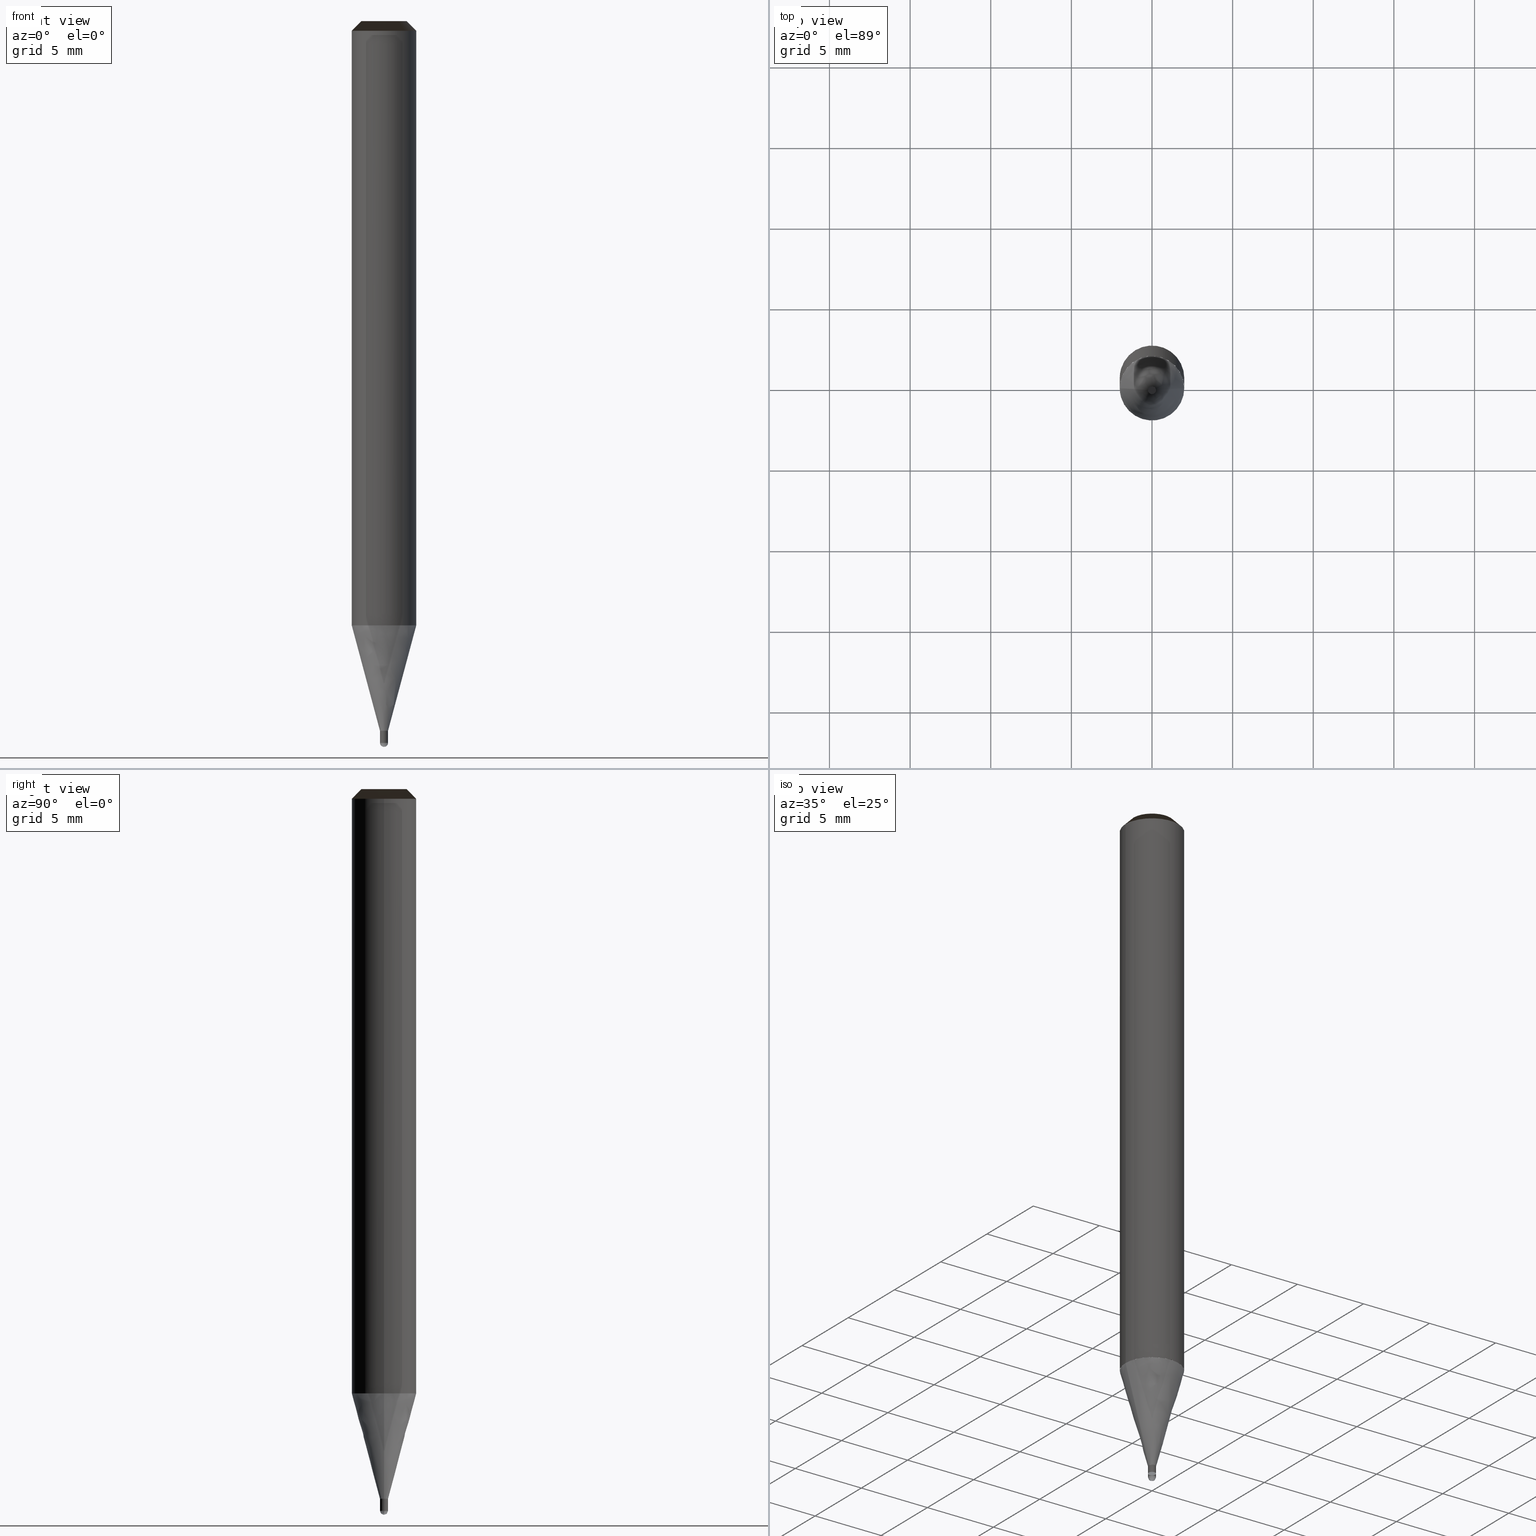
[diagram: canonical four-view strip — front | top / right | iso, engineering-drawing reading convention]
A machine part, canonical four-view strip (front | top / right | iso — engineering-drawing reading convention). The complete STEP part file that produces these views, byte-faithful:
ISO-10303-21;
HEADER;
/* Generated by ISBE GmbH (www.isbe.de) */
/* OPTION: using custom schema-name function */

FILE_DESCRIPTION(
/* description */ (''),
/* implementation_level */ '2;1');

FILE_NAME(
/*name*/ 'SHBN-2005-010-S04-STH',
/*time_stamp*/'2023-6-20T7:41:44',
/*author*/ ('ISBE GmbH'),
/*organization*/ ('ISBE GmbH'),
/*preprocessor_version*/ 'STEP IO v1.0',
/*originating_system*/ '',
/*authorisation*/ '');

FILE_SCHEMA (('AUTOMOTIVE_DESIGN'));
ENDSEC;

DATA;
#10=SHAPE_DEFINITION_REPRESENTATION(#11,#57);
#11=PRODUCT_DEFINITION_SHAPE('Document','',#13);
#12=PRODUCT_DEFINITION_CONTEXT('3D Mechanical Parts',#17,'design');
#13=PRODUCT_DEFINITION('A','First version',#14,#12);
#14=PRODUCT_DEFINITION_FORMATION_WITH_SPECIFIED_SOURCE('A','First version',#19,.MADE.);
#15=PRODUCT_RELATED_PRODUCT_CATEGORY('tool','tool',(#19));
#16=APPLICATION_PROTOCOL_DEFINITION('Draft International Standard', 'automotive_design',1999,#17);
#17=APPLICATION_CONTEXT('data for automotive mechanical design processes');
#18=PRODUCT_CONTEXT('3D Mechanical Parts',#17,'mechanical');
#19=PRODUCT('Document','Document','ISBE converted to STEP',(#18));
#20=(
LENGTH_UNIT()
NAMED_UNIT(*)
SI_UNIT(.MILLI.,.METRE.)
);
#21=(
NAMED_UNIT(*)
PLANE_ANGLE_UNIT()
SI_UNIT($,.RADIAN.)
);
#22=DIMENSIONAL_EXPONENTS(0.,0.,0.,0.,0.,0.,0.);
#23=PLANE_ANGLE_MEASURE_WITH_UNIT(PLANE_ANGLE_MEASURE(0.01745329252),#21);
#24=(
CONVERSION_BASED_UNIT('DEGREES',#23)
NAMED_UNIT(#22)
PLANE_ANGLE_UNIT()
);
#25=(
NAMED_UNIT(*)
SI_UNIT($,.STERADIAN.)
SOLID_ANGLE_UNIT()
);
#26=UNCERTAINTY_MEASURE_WITH_UNIT(LENGTH_MEASURE(0.001),#20, 'DISTANCE_ACCURACY_VALUE', 'Maximum model space distance between geometric entities at asserted connectivities');
#27=(
GEOMETRIC_REPRESENTATION_CONTEXT(3)
GLOBAL_UNCERTAINTY_ASSIGNED_CONTEXT((#26))
GLOBAL_UNIT_ASSIGNED_CONTEXT((#25,#24,#20))
REPRESENTATION_CONTEXT('ID1','3D')
);
#28=CARTESIAN_POINT('',(0.0,0.0,0.0));
#29=DIRECTION('',(1.0,0.0,0.0));
#30=DIRECTION('',(0.0,0.0,1.0));
#31=AXIS2_PLACEMENT_3D('',#28,#30,#29);
#32=CARTESIAN_POINT('',(0.0,0.0,0.0));
#33=DIRECTION('',(1.0,0.0,0.0));
#34=DIRECTION('',(0.0,0.0,1.0));
#35=AXIS2_PLACEMENT_3D('',#32,#34,#33);
#36=CARTESIAN_POINT('',(0.0,0.0,0.0));
#37=DIRECTION('',(1.0,0.0,0.0));
#38=DIRECTION('',(0.0,0.0,1.0));
#39=AXIS2_PLACEMENT_3D('',#36,#38,#37);
#40=CARTESIAN_POINT('',(0.0,0.0,0.0));
#41=DIRECTION('',(0.0,0.0,1.0));
#42=DIRECTION('',(1.0,0.0,0.0));
#43=AXIS2_PLACEMENT_3D('MCS',#40,#42,#41);
#44=CARTESIAN_POINT('',(0.0,0.0,37.47));
#45=DIRECTION('',(0.0,0.0,1.0));
#46=DIRECTION('',(1.0,0.0,0.0));
#47=AXIS2_PLACEMENT_3D('PCS',#44,#46,#45);
#48=CARTESIAN_POINT('',(0.0,0.0,-7.53));
#49=DIRECTION('',(0.0,0.0,1.0));
#50=DIRECTION('',(1.0,0.0,0.0));
#51=AXIS2_PLACEMENT_3D('CIP',#48,#50,#49);
#52=CARTESIAN_POINT('',(0.0,-0.25,-7.53));
#53=DIRECTION('',(0.0,0.0,1.0));
#54=DIRECTION('',(1.0,0.0,0.0));
#55=AXIS2_PLACEMENT_3D('CRP',#52,#54,#53);
#57=SHAPE_REPRESENTATION('Document',(#31,#35,#39,#43,#47,#51,#55),#27);
#58=DIRECTION('',(1.0,0.0,0.0));
#59=DIRECTION('',(0.0,0.0,1.0));
#60=CARTESIAN_POINT('',(-0.002499872672,-0.00002523136,-7.529959925233));
#61=CARTESIAN_POINT('',(-0.002421480193,-0.007638253087,-7.52987155405));
#62=CARTESIAN_POINT('',(-0.002322864485,-0.015848229195,-7.529486348188));
#63=CARTESIAN_POINT('',(-0.002197355265,-0.023904978014,-7.528844778237));
#64=CARTESIAN_POINT('',(-0.002029954615,-0.031904777296,-7.527947503456));
#65=CARTESIAN_POINT('',(-0.001806730511,-0.039859047038,-7.526795445854));
#66=CARTESIAN_POINT('',(-0.001514175515,-0.047765663457,-7.525389789248));
#67=CARTESIAN_POINT('',(-0.00113918243,-0.055618568315,-7.523731978045));
#68=CARTESIAN_POINT('',(-0.000669091871,-0.063410116009,-7.52182371576));
#69=CARTESIAN_POINT('',(-0.000091754697,-0.071131837479,-7.519666963259));
#70=CARTESIAN_POINT('',(0.000604402074,-0.078774735891,-7.517263936753));
#71=CARTESIAN_POINT('',(0.00143030911,-0.08632941571,-7.514617105512));
#72=CARTESIAN_POINT('',(0.002396189665,-0.093786145483,-7.511729189337));
#73=CARTESIAN_POINT('',(0.003511496199,-0.101134892959,-7.508603155754));
#74=CARTESIAN_POINT('',(0.004784849201,-0.108365349213,-7.505242216976));
#75=CARTESIAN_POINT('',(0.006223978645,-0.115466949648,-7.501649826593));
#76=CARTESIAN_POINT('',(0.007835668468,-0.122428895854,-7.497829676031));
#77=CARTESIAN_POINT('',(0.009625704481,-0.129240180452,-7.493785690751));
#78=CARTESIAN_POINT('',(0.011598826128,-0.135889616086,-7.489522026223));
#79=CARTESIAN_POINT('',(0.013758682494,-0.142365869173,-7.485043063649));
#80=CARTESIAN_POINT('',(0.016107792999,-0.148657498709,-7.480353405467));
#81=CARTESIAN_POINT('',(0.018647513194,-0.154753000183,-7.475457870617));
#82=CARTESIAN_POINT('',(0.021378006066,-0.160640854507,-7.470361489592));
#83=CARTESIAN_POINT('',(0.024298219265,-0.166309581747,-7.465069499269));
#84=CARTESIAN_POINT('',(0.027405868636,-0.171747799302,-7.459587337524));
#85=CARTESIAN_POINT('',(0.030697428404,-0.176944284136,-7.453920637651));
#86=CARTESIAN_POINT('',(0.034168128355,-0.181888038541,-7.448075222565));
#87=CARTESIAN_POINT('',(0.037811958278,-0.186568358869,-7.442057098827));
#88=CARTESIAN_POINT('',(0.041621679924,-0.190974906588,-7.435872450465));
#89=CARTESIAN_POINT('',(0.045588846652,-0.19509778098,-7.429527632623));
#90=CARTESIAN_POINT('',(0.049703830893,-0.19892759272,-7.423029165031));
#91=CARTESIAN_POINT('',(0.053955859477,-0.20245553759,-7.416383725303));
#92=CARTESIAN_POINT('',(0.058333056825,-0.205673469488,-7.409598142078));
#93=CARTESIAN_POINT('',(0.0628224959,-0.208573971935,-7.402679388001));
#94=CARTESIAN_POINT('',(0.067410256746,-0.211150427218,-7.39563457256));
#95=CARTESIAN_POINT('',(0.072081492384,-0.213397082369,-7.388470934779));
#96=CARTESIAN_POINT('',(0.076820501709,-0.215309111135,-7.381195835781));
#97=CARTESIAN_POINT('',(0.081610808987,-0.216882671155,-7.37381675122));
#98=CARTESIAN_POINT('',(0.086435249463,-0.218114955584,-7.366341263605));
#99=CARTESIAN_POINT('',(0.091276060506,-0.219004238456,-7.358777054506));
#100=CARTESIAN_POINT('',(0.096114977647,-0.219549913117,-7.351131896658));
#101=CARTESIAN_POINT('',(0.100933334818,-0.21975252314,-7.343413645977));
#102=CARTESIAN_POINT('',(0.105712168015,-0.219613785213,-7.335630233489));
#103=CARTESIAN_POINT('',(0.110432321577,-0.219136603556,-7.327789657175));
#104=CARTESIAN_POINT('',(0.115074556223,-0.218325075528,-7.319899973758));
#105=CARTESIAN_POINT('',(0.119619657961,-0.217184488165,-7.311969290421));
#106=CARTESIAN_POINT('',(0.124048546952,-0.215721305519,-7.304005756477));
#107=CARTESIAN_POINT('',(0.128342385434,-0.213943146731,-7.296017554995));
#108=CARTESIAN_POINT('',(0.132482683758,-0.2118587549,-7.288012894393));
#109=CARTESIAN_POINT('',(0.136451403668,-0.209477956924,-7.28));
#110=CARTESIAN_POINT('',(0.165163164321,-0.187672931323,-7.2175));
#111=CARTESIAN_POINT('',(0.190439995354,-0.161964836213,-7.155));
#112=CARTESIAN_POINT('',(0.211756209723,-0.132888327719,-7.0925));
#113=CARTESIAN_POINT('',(0.228668490079,-0.101048115496,-7.03));
#114=CARTESIAN_POINT('',(0.002499872672,0.00002523136,-7.529959925233));
#115=CARTESIAN_POINT('',(0.002421480193,0.007638253087,-7.52987155405));
#116=CARTESIAN_POINT('',(0.002322864485,0.015848229195,-7.529486348188));
#117=CARTESIAN_POINT('',(0.002197355265,0.023904978014,-7.528844778237));
#118=CARTESIAN_POINT('',(0.002029954615,0.031904777296,-7.527947503456));
#119=CARTESIAN_POINT('',(0.001806730511,0.039859047038,-7.526795445854));
#120=CARTESIAN_POINT('',(0.001514175515,0.047765663457,-7.525389789248));
#121=CARTESIAN_POINT('',(0.00113918243,0.055618568315,-7.523731978045));
#122=CARTESIAN_POINT('',(0.000669091871,0.063410116009,-7.52182371576));
#123=CARTESIAN_POINT('',(0.000091754697,0.071131837479,-7.519666963259));
#124=CARTESIAN_POINT('',(-0.000604402074,0.078774735891,-7.517263936753));
#125=CARTESIAN_POINT('',(-0.00143030911,0.08632941571,-7.514617105512));
#126=CARTESIAN_POINT('',(-0.002396189665,0.093786145483,-7.511729189337));
#127=CARTESIAN_POINT('',(-0.003511496199,0.101134892959,-7.508603155754));
#128=CARTESIAN_POINT('',(-0.004784849201,0.108365349213,-7.505242216976));
#129=CARTESIAN_POINT('',(-0.006223978645,0.115466949648,-7.501649826593));
#130=CARTESIAN_POINT('',(-0.007835668468,0.122428895854,-7.497829676031));
#131=CARTESIAN_POINT('',(-0.009625704481,0.129240180452,-7.493785690751));
#132=CARTESIAN_POINT('',(-0.011598826128,0.135889616086,-7.489522026223));
#133=CARTESIAN_POINT('',(-0.013758682494,0.142365869173,-7.485043063649));
#134=CARTESIAN_POINT('',(-0.016107792999,0.148657498709,-7.480353405467));
#135=CARTESIAN_POINT('',(-0.018647513194,0.154753000183,-7.475457870617));
#136=CARTESIAN_POINT('',(-0.021378006066,0.160640854507,-7.470361489592));
#137=CARTESIAN_POINT('',(-0.024298219265,0.166309581747,-7.465069499269));
#138=CARTESIAN_POINT('',(-0.027405868636,0.171747799302,-7.459587337524));
#139=CARTESIAN_POINT('',(-0.030697428404,0.176944284136,-7.453920637651));
#140=CARTESIAN_POINT('',(-0.034168128355,0.181888038541,-7.448075222565));
#141=CARTESIAN_POINT('',(-0.037811958278,0.186568358869,-7.442057098827));
#142=CARTESIAN_POINT('',(-0.041621679924,0.190974906588,-7.435872450465));
#143=CARTESIAN_POINT('',(-0.045588846652,0.19509778098,-7.429527632623));
#144=CARTESIAN_POINT('',(-0.049703830893,0.19892759272,-7.423029165031));
#145=CARTESIAN_POINT('',(-0.053955859477,0.20245553759,-7.416383725303));
#146=CARTESIAN_POINT('',(-0.058333056825,0.205673469488,-7.409598142078));
#147=CARTESIAN_POINT('',(-0.0628224959,0.208573971935,-7.402679388001));
#148=CARTESIAN_POINT('',(-0.067410256746,0.211150427218,-7.39563457256));
#149=CARTESIAN_POINT('',(-0.072081492384,0.213397082369,-7.388470934779));
#150=CARTESIAN_POINT('',(-0.076820501709,0.215309111135,-7.381195835781));
#151=CARTESIAN_POINT('',(-0.081610808987,0.216882671155,-7.37381675122));
#152=CARTESIAN_POINT('',(-0.086435249463,0.218114955584,-7.366341263605));
#153=CARTESIAN_POINT('',(-0.091276060506,0.219004238456,-7.358777054506));
#154=CARTESIAN_POINT('',(-0.096114977647,0.219549913117,-7.351131896658));
#155=CARTESIAN_POINT('',(-0.100933334818,0.21975252314,-7.343413645977));
#156=CARTESIAN_POINT('',(-0.105712168015,0.219613785213,-7.335630233489));
#157=CARTESIAN_POINT('',(-0.110432321577,0.219136603556,-7.327789657175));
#158=CARTESIAN_POINT('',(-0.115074556223,0.218325075528,-7.319899973758));
#159=CARTESIAN_POINT('',(-0.119619657961,0.217184488165,-7.311969290421));
#160=CARTESIAN_POINT('',(-0.124048546952,0.215721305519,-7.304005756477));
#161=CARTESIAN_POINT('',(-0.128342385434,0.213943146731,-7.296017554995));
#162=CARTESIAN_POINT('',(-0.132482683758,0.2118587549,-7.288012894393));
#163=CARTESIAN_POINT('',(-0.136451403668,0.209477956924,-7.28));
#164=CARTESIAN_POINT('',(-0.165163164321,0.187672931323,-7.2175));
#165=CARTESIAN_POINT('',(-0.190439995354,0.161964836213,-7.155));
#166=CARTESIAN_POINT('',(-0.211756209723,0.132888327719,-7.0925));
#167=CARTESIAN_POINT('',(-0.228668490079,0.101048115496,-7.03));
#168=CARTESIAN_POINT('',(0.0,0.0,-7.53));
#169=CARTESIAN_POINT('',(0.25,0.0,-7.53));
#170=CARTESIAN_POINT('',(0.25,0.25,-7.53));
#171=CARTESIAN_POINT('',(0.0,0.25,-7.53));
#172=CARTESIAN_POINT('',(-0.25,0.25,-7.53));
#173=CARTESIAN_POINT('',(-0.25,0.0,-7.53));
#174=CARTESIAN_POINT('',(0.25,0.0,-7.28));
#175=CARTESIAN_POINT('',(0.25,0.25,-7.28));
#176=CARTESIAN_POINT('',(0.0,0.25,-7.28));
#177=CARTESIAN_POINT('',(-0.25,0.25,-7.28));
#178=CARTESIAN_POINT('',(-0.25,0.0,-7.28));
#179=CARTESIAN_POINT('',(0.25,0.0,-7.03));
#180=CARTESIAN_POINT('',(0.25,0.25,-7.03));
#181=CARTESIAN_POINT('',(0.0,0.25,-7.03));
#182=CARTESIAN_POINT('',(-0.25,0.25,-7.03));
#183=CARTESIAN_POINT('',(-0.25,0.0,-7.03));
#184=CARTESIAN_POINT('',(0.0,0.0,-7.03));
#185=CARTESIAN_POINT('',(-0.25,-0.25,-7.53));
#186=CARTESIAN_POINT('',(0.0,-0.25,-7.53));
#187=CARTESIAN_POINT('',(0.25,-0.25,-7.53));
#188=CARTESIAN_POINT('',(-0.25,-0.25,-7.28));
#189=CARTESIAN_POINT('',(0.0,-0.25,-7.28));
#190=CARTESIAN_POINT('',(0.25,-0.25,-7.28));
#191=CARTESIAN_POINT('',(-0.25,-0.25,-7.03));
#192=CARTESIAN_POINT('',(0.0,-0.25,-7.03));
#193=CARTESIAN_POINT('',(0.25,-0.25,-7.03));
#194=CARTESIAN_POINT('',(0.25,0.0,-6.531088913246));
#195=CARTESIAN_POINT('',(0.25,0.25,-6.531088913246));
#196=CARTESIAN_POINT('',(0.0,0.25,-6.531088913246));
#197=CARTESIAN_POINT('',(-0.25,0.25,-6.531088913246));
#198=CARTESIAN_POINT('',(-0.25,0.0,-6.531088913246));
#199=CARTESIAN_POINT('',(2.0,0.0,-0.0));
#200=CARTESIAN_POINT('',(2.0,2.0,-0.0));
#201=CARTESIAN_POINT('',(0.0,2.0,-0.0));
#202=CARTESIAN_POINT('',(-2.0,2.0,-0.0));
#203=CARTESIAN_POINT('',(-2.0,0.0,-0.0));
#204=CARTESIAN_POINT('',(2.0,0.0,36.87));
#205=CARTESIAN_POINT('',(2.0,2.0,36.87));
#206=CARTESIAN_POINT('',(0.0,2.0,36.87));
#207=CARTESIAN_POINT('',(-2.0,2.0,36.87));
#208=CARTESIAN_POINT('',(-2.0,0.0,36.87));
#209=CARTESIAN_POINT('',(1.4,0.0,37.47));
#210=CARTESIAN_POINT('',(1.4,1.4,37.47));
#211=CARTESIAN_POINT('',(0.0,1.4,37.47));
#212=CARTESIAN_POINT('',(-1.4,1.4,37.47));
#213=CARTESIAN_POINT('',(-1.4,0.0,37.47));
#214=CARTESIAN_POINT('',(0.0,0.0,37.47));
#215=CARTESIAN_POINT('',(-0.25,-0.25,-6.531088913246));
#216=CARTESIAN_POINT('',(0.0,-0.25,-6.531088913246));
#217=CARTESIAN_POINT('',(0.25,-0.25,-6.531088913246));
#218=CARTESIAN_POINT('',(-2.0,-2.0,-0.0));
#219=CARTESIAN_POINT('',(0.0,-2.0,-0.0));
#220=CARTESIAN_POINT('',(2.0,-2.0,-0.0));
#221=CARTESIAN_POINT('',(-2.0,-2.0,36.87));
#222=CARTESIAN_POINT('',(0.0,-2.0,36.87));
#223=CARTESIAN_POINT('',(2.0,-2.0,36.87));
#224=CARTESIAN_POINT('',(-1.4,-1.4,37.47));
#225=CARTESIAN_POINT('',(0.0,-1.4,37.47));
#226=CARTESIAN_POINT('',(1.4,-1.4,37.47));
#227=(
BOUNDED_CURVE()
B_SPLINE_CURVE(1,(#60,#61,#62,#63,#64,#65,#66,#67,#68,#69,#70,#71,#72,#73,#74,#75,#76,#77,#78,#79,#80,#81,#82,#83,#84,#85,#86,#87,#88,#89,#90,#91,#92,#93,#94,#95,#96,#97,#98,#99,#100,#101,#102,#103,#104,#105,#106,#107,#108,#109,#110,#111,#112,#113),.UNSPECIFIED.,.F.,.F.)
B_SPLINE_CURVE_WITH_KNOTS((2,1,1,1,1,1,1,1,1,1,1,1,1,1,1,1,1,1,1,1,1,1,1,1,1,1,1,1,1,1,1,1,1,1,1,1,1,1,1,1,1,1,1,1,1,1,1,1,1,1,1,1,1,2),
(0.0,0.010797192835,0.022453263441,0.033915947201,0.045333926007,0.056735827576,0.06813142827,0.079525355078,0.090920481366,0.1023190675,0.113723225852,0.125135136666,0.136557155917,0.147991869074,0.159442113771,0.170910982133,0.182401808279,0.193918144173,0.205463725891,0.217042431899,0.228658234729,0.240315147402,0.252017165885,0.26376820897,0.27557205687,0.287432289892,0.299352228446,0.311334875598,0.323382863269,0.335498403056,0.347683242503,0.359938627502,0.372265271341,0.384663330756,0.397132389214,0.409671447473,0.422278921388,0.434952646792,0.447689891198,0.460487371987,0.473341280697,0.48624731298,0.499200703737,0.512196266955,0.525228439729,0.538291329947,0.55137876712,0.564484355831,0.577601531285,0.590723616436,0.693042712327,0.795361808218,0.897680904109,1.0),.UNSPECIFIED.)
CURVE()
GEOMETRIC_REPRESENTATION_ITEM()
RATIONAL_B_SPLINE_CURVE((1.0,1.0,1.0,1.0,1.0,1.0,1.0,1.0,1.0,1.0,1.0,1.0,1.0,1.0,1.0,1.0,1.0,1.0,1.0,1.0,1.0,1.0,1.0,1.0,1.0,1.0,1.0,1.0,1.0,1.0,1.0,1.0,1.0,1.0,1.0,1.0,1.0,1.0,1.0,1.0,1.0,1.0,1.0,1.0,1.0,1.0,1.0,1.0,1.0,1.0,1.0,1.0,1.0,1.0))
REPRESENTATION_ITEM('')
);
#228=(
BOUNDED_CURVE()
B_SPLINE_CURVE(1,(#114,#115,#116,#117,#118,#119,#120,#121,#122,#123,#124,#125,#126,#127,#128,#129,#130,#131,#132,#133,#134,#135,#136,#137,#138,#139,#140,#141,#142,#143,#144,#145,#146,#147,#148,#149,#150,#151,#152,#153,#154,#155,#156,#157,#158,#159,#160,#161,#162,#163,#164,#165,#166,#167),.UNSPECIFIED.,.F.,.F.)
B_SPLINE_CURVE_WITH_KNOTS((2,1,1,1,1,1,1,1,1,1,1,1,1,1,1,1,1,1,1,1,1,1,1,1,1,1,1,1,1,1,1,1,1,1,1,1,1,1,1,1,1,1,1,1,1,1,1,1,1,1,1,1,1,2),
(0.0,0.010797192835,0.022453263441,0.033915947201,0.045333926007,0.056735827576,0.06813142827,0.079525355078,0.090920481366,0.1023190675,0.113723225852,0.125135136666,0.136557155917,0.147991869074,0.159442113771,0.170910982133,0.182401808279,0.193918144173,0.205463725891,0.217042431899,0.228658234729,0.240315147402,0.252017165885,0.26376820897,0.27557205687,0.287432289892,0.299352228446,0.311334875598,0.323382863269,0.335498403056,0.347683242503,0.359938627502,0.372265271341,0.384663330756,0.397132389214,0.409671447473,0.422278921388,0.434952646792,0.447689891198,0.460487371987,0.473341280697,0.48624731298,0.499200703737,0.512196266955,0.525228439729,0.538291329947,0.55137876712,0.564484355831,0.577601531285,0.590723616436,0.693042712327,0.795361808218,0.897680904109,1.0),.UNSPECIFIED.)
CURVE()
GEOMETRIC_REPRESENTATION_ITEM()
RATIONAL_B_SPLINE_CURVE((1.0,1.0,1.0,1.0,1.0,1.0,1.0,1.0,1.0,1.0,1.0,1.0,1.0,1.0,1.0,1.0,1.0,1.0,1.0,1.0,1.0,1.0,1.0,1.0,1.0,1.0,1.0,1.0,1.0,1.0,1.0,1.0,1.0,1.0,1.0,1.0,1.0,1.0,1.0,1.0,1.0,1.0,1.0,1.0,1.0,1.0,1.0,1.0,1.0,1.0,1.0,1.0,1.0,1.0))
REPRESENTATION_ITEM('')
);
#229=SHAPE_REPRESENTATION_RELATIONSHIP('','',#57,#230);
#230=GEOMETRICALLY_BOUNDED_WIREFRAME_SHAPE_REPRESENTATION('Curves',(#231,#31),#27);
#231=GEOMETRIC_CURVE_SET('CurveSet',(#227,#228));
#232=(
BOUNDED_SURFACE()
B_SPLINE_SURFACE(2,2,(
(#168,#168,#168,#168,#168),
(#169,#170,#171,#172,#173),
(#174,#175,#176,#177,#178)
), .UNSPECIFIED.,.F.,.F.,.F.)
B_SPLINE_SURFACE_WITH_KNOTS((3,3),(3,2,3),(
0.0,1.0),(
0.0,0.5,1.0), .UNSPECIFIED.)
GEOMETRIC_REPRESENTATION_ITEM()
RATIONAL_B_SPLINE_SURFACE(((1.0,0.707106781187,1.0,0.707106781187,1.0),
(0.707106781187,0.5,0.707106781187,0.5,0.707106781187),
(1.0,0.707106781187,1.0,0.707106781187,1.0)
))
REPRESENTATION_ITEM('')
SURFACE()
);
#233=(
BOUNDED_CURVE()
B_SPLINE_CURVE(2,(#174,#175,#176,#177,#178),.UNSPECIFIED.,.F.,.F.)
B_SPLINE_CURVE_WITH_KNOTS((3,2,3),
(0.0,0.5,1.0),.UNSPECIFIED.)
CURVE()
GEOMETRIC_REPRESENTATION_ITEM()
RATIONAL_B_SPLINE_CURVE((1.0,0.707106781187,1.0,0.707106781187,1.0))
REPRESENTATION_ITEM('')
);
#234=(
BOUNDED_CURVE()
B_SPLINE_CURVE(2,(#178,#173,#168),.UNSPECIFIED.,.F.,.F.)
B_SPLINE_CURVE_WITH_KNOTS((3,3),
(0.0,1.0),.UNSPECIFIED.)
CURVE()
GEOMETRIC_REPRESENTATION_ITEM()
RATIONAL_B_SPLINE_CURVE((1.0,0.707106781187,1.0))
REPRESENTATION_ITEM('')
);
#235=(
BOUNDED_CURVE()
B_SPLINE_CURVE(2,(#168,#169,#174),.UNSPECIFIED.,.F.,.F.)
B_SPLINE_CURVE_WITH_KNOTS((3,3),
(0.0,1.0),.UNSPECIFIED.)
CURVE()
GEOMETRIC_REPRESENTATION_ITEM()
RATIONAL_B_SPLINE_CURVE((1.0,0.707106781187,1.0))
REPRESENTATION_ITEM('')
);
#236=VERTEX_POINT('',#168);
#237=VERTEX_POINT('',#174);
#238=VERTEX_POINT('',#178);
#239=EDGE_CURVE('',#237,#238,#233,.T.);
#240=EDGE_CURVE('',#238,#236,#234,.T.);
#241=EDGE_CURVE('',#236,#237,#235,.T.);
#242=ORIENTED_EDGE('',*,*,#239,.T.);
#243=ORIENTED_EDGE('',*,*,#240,.T.);
#244=ORIENTED_EDGE('',*,*,#241,.T.);
#245=EDGE_LOOP('',(#242,#243,#244));
#246=FACE_OUTER_BOUND('',#245,.T.);
#247=ADVANCED_FACE('',(#246),#232,.T.);
#248=(
BOUNDED_SURFACE()
B_SPLINE_SURFACE(1,2,(
(#174,#175,#176,#177,#178),
(#179,#180,#181,#182,#183)
), .UNSPECIFIED.,.F.,.F.,.F.)
B_SPLINE_SURFACE_WITH_KNOTS((2,2),(3,2,3),(
0.0,1.0),(
0.0,0.5,1.0), .UNSPECIFIED.)
GEOMETRIC_REPRESENTATION_ITEM()
RATIONAL_B_SPLINE_SURFACE(((1.0,0.707106781187,1.0,0.707106781187,1.0),
(1.0,0.707106781187,1.0,0.707106781187,1.0)
))
REPRESENTATION_ITEM('')
SURFACE()
);
#249=(
BOUNDED_CURVE()
B_SPLINE_CURVE(2,(#179,#180,#181,#182,#183),.UNSPECIFIED.,.F.,.F.)
B_SPLINE_CURVE_WITH_KNOTS((3,2,3),
(0.0,0.5,1.0),.UNSPECIFIED.)
CURVE()
GEOMETRIC_REPRESENTATION_ITEM()
RATIONAL_B_SPLINE_CURVE((1.0,0.707106781187,1.0,0.707106781187,1.0))
REPRESENTATION_ITEM('')
);
#250=(
BOUNDED_CURVE()
B_SPLINE_CURVE(1,(#183,#178),.UNSPECIFIED.,.F.,.F.)
B_SPLINE_CURVE_WITH_KNOTS((2,2),
(0.0,1.0),.UNSPECIFIED.)
CURVE()
GEOMETRIC_REPRESENTATION_ITEM()
RATIONAL_B_SPLINE_CURVE((1.0,1.0))
REPRESENTATION_ITEM('')
);
#251=(
BOUNDED_CURVE()
B_SPLINE_CURVE(2,(#178,#177,#176,#175,#174),.UNSPECIFIED.,.F.,.F.)
B_SPLINE_CURVE_WITH_KNOTS((3,2,3),
(0.0,0.5,1.0),.UNSPECIFIED.)
CURVE()
GEOMETRIC_REPRESENTATION_ITEM()
RATIONAL_B_SPLINE_CURVE((1.0,0.707106781187,1.0,0.707106781187,1.0))
REPRESENTATION_ITEM('')
);
#252=(
BOUNDED_CURVE()
B_SPLINE_CURVE(1,(#174,#179),.UNSPECIFIED.,.F.,.F.)
B_SPLINE_CURVE_WITH_KNOTS((2,2),
(0.0,1.0),.UNSPECIFIED.)
CURVE()
GEOMETRIC_REPRESENTATION_ITEM()
RATIONAL_B_SPLINE_CURVE((1.0,1.0))
REPRESENTATION_ITEM('')
);
#253=VERTEX_POINT('',#174);
#254=VERTEX_POINT('',#178);
#255=VERTEX_POINT('',#179);
#256=VERTEX_POINT('',#183);
#257=EDGE_CURVE('',#255,#256,#249,.T.);
#258=EDGE_CURVE('',#256,#254,#250,.T.);
#259=EDGE_CURVE('',#254,#253,#251,.T.);
#260=EDGE_CURVE('',#253,#255,#252,.T.);
#261=ORIENTED_EDGE('',*,*,#257,.T.);
#262=ORIENTED_EDGE('',*,*,#258,.T.);
#263=ORIENTED_EDGE('',*,*,#259,.T.);
#264=ORIENTED_EDGE('',*,*,#260,.T.);
#265=EDGE_LOOP('',(#261,#262,#263,#264));
#266=FACE_OUTER_BOUND('',#265,.T.);
#267=ADVANCED_FACE('',(#266),#248,.T.);
#268=(
BOUNDED_SURFACE()
B_SPLINE_SURFACE(1,2,(
(#179,#180,#181,#182,#183),
(#184,#184,#184,#184,#184)
), .UNSPECIFIED.,.F.,.F.,.F.)
B_SPLINE_SURFACE_WITH_KNOTS((2,2),(3,2,3),(
0.0,1.0),(
0.0,0.5,1.0), .UNSPECIFIED.)
GEOMETRIC_REPRESENTATION_ITEM()
RATIONAL_B_SPLINE_SURFACE(((1.0,0.707106781187,1.0,0.707106781187,1.0),
(1.0,0.707106781187,1.0,0.707106781187,1.0)
))
REPRESENTATION_ITEM('')
SURFACE()
);
#269=(
BOUNDED_CURVE()
B_SPLINE_CURVE(1,(#184,#179),.UNSPECIFIED.,.F.,.F.)
B_SPLINE_CURVE_WITH_KNOTS((2,2),
(0.0,1.0),.UNSPECIFIED.)
CURVE()
GEOMETRIC_REPRESENTATION_ITEM()
RATIONAL_B_SPLINE_CURVE((1.0,1.0))
REPRESENTATION_ITEM('')
);
#270=(
BOUNDED_CURVE()
B_SPLINE_CURVE(2,(#179,#180,#181,#182,#183),.UNSPECIFIED.,.F.,.F.)
B_SPLINE_CURVE_WITH_KNOTS((3,2,3),
(0.0,0.5,1.0),.UNSPECIFIED.)
CURVE()
GEOMETRIC_REPRESENTATION_ITEM()
RATIONAL_B_SPLINE_CURVE((1.0,0.707106781187,1.0,0.707106781187,1.0))
REPRESENTATION_ITEM('')
);
#271=(
BOUNDED_CURVE()
B_SPLINE_CURVE(1,(#183,#184),.UNSPECIFIED.,.F.,.F.)
B_SPLINE_CURVE_WITH_KNOTS((2,2),
(0.0,1.0),.UNSPECIFIED.)
CURVE()
GEOMETRIC_REPRESENTATION_ITEM()
RATIONAL_B_SPLINE_CURVE((1.0,1.0))
REPRESENTATION_ITEM('')
);
#272=VERTEX_POINT('',#179);
#273=VERTEX_POINT('',#183);
#274=VERTEX_POINT('',#184);
#275=EDGE_CURVE('',#274,#272,#269,.T.);
#276=EDGE_CURVE('',#272,#273,#270,.T.);
#277=EDGE_CURVE('',#273,#274,#271,.T.);
#278=ORIENTED_EDGE('',*,*,#275,.T.);
#279=ORIENTED_EDGE('',*,*,#276,.T.);
#280=ORIENTED_EDGE('',*,*,#277,.T.);
#281=EDGE_LOOP('',(#278,#279,#280));
#282=FACE_OUTER_BOUND('',#281,.T.);
#283=ADVANCED_FACE('',(#282),#268,.T.);
#284=(
BOUNDED_SURFACE()
B_SPLINE_SURFACE(2,2,(
(#168,#168,#168,#168,#168),
(#173,#185,#186,#187,#169),
(#178,#188,#189,#190,#174)
), .UNSPECIFIED.,.F.,.F.,.F.)
B_SPLINE_SURFACE_WITH_KNOTS((3,3),(3,2,3),(
0.0,1.0),(
0.0,0.5,1.0), .UNSPECIFIED.)
GEOMETRIC_REPRESENTATION_ITEM()
RATIONAL_B_SPLINE_SURFACE(((1.0,0.707106781187,1.0,0.707106781187,1.0),
(0.707106781187,0.5,0.707106781187,0.5,0.707106781187),
(1.0,0.707106781187,1.0,0.707106781187,1.0)
))
REPRESENTATION_ITEM('')
SURFACE()
);
#285=(
BOUNDED_CURVE()
B_SPLINE_CURVE(2,(#178,#173,#168),.UNSPECIFIED.,.F.,.F.)
B_SPLINE_CURVE_WITH_KNOTS((3,3),
(0.0,1.0),.UNSPECIFIED.)
CURVE()
GEOMETRIC_REPRESENTATION_ITEM()
RATIONAL_B_SPLINE_CURVE((1.0,0.707106781187,1.0))
REPRESENTATION_ITEM('')
);
#286=(
BOUNDED_CURVE()
B_SPLINE_CURVE(2,(#168,#169,#174),.UNSPECIFIED.,.F.,.F.)
B_SPLINE_CURVE_WITH_KNOTS((3,3),
(0.0,1.0),.UNSPECIFIED.)
CURVE()
GEOMETRIC_REPRESENTATION_ITEM()
RATIONAL_B_SPLINE_CURVE((1.0,0.707106781187,1.0))
REPRESENTATION_ITEM('')
);
#287=(
BOUNDED_CURVE()
B_SPLINE_CURVE(2,(#174,#190,#189,#188,#178),.UNSPECIFIED.,.F.,.F.)
B_SPLINE_CURVE_WITH_KNOTS((3,2,3),
(0.0,0.5,1.0),.UNSPECIFIED.)
CURVE()
GEOMETRIC_REPRESENTATION_ITEM()
RATIONAL_B_SPLINE_CURVE((1.0,0.707106781187,1.0,0.707106781187,1.0))
REPRESENTATION_ITEM('')
);
#288=VERTEX_POINT('',#168);
#289=VERTEX_POINT('',#174);
#290=VERTEX_POINT('',#178);
#291=EDGE_CURVE('',#290,#288,#285,.T.);
#292=EDGE_CURVE('',#288,#289,#286,.T.);
#293=EDGE_CURVE('',#289,#290,#287,.T.);
#294=ORIENTED_EDGE('',*,*,#291,.T.);
#295=ORIENTED_EDGE('',*,*,#292,.T.);
#296=ORIENTED_EDGE('',*,*,#293,.T.);
#297=EDGE_LOOP('',(#294,#295,#296));
#298=FACE_OUTER_BOUND('',#297,.T.);
#299=ADVANCED_FACE('',(#298),#284,.T.);
#300=(
BOUNDED_SURFACE()
B_SPLINE_SURFACE(1,2,(
(#178,#188,#189,#190,#174),
(#183,#191,#192,#193,#179)
), .UNSPECIFIED.,.F.,.F.,.F.)
B_SPLINE_SURFACE_WITH_KNOTS((2,2),(3,2,3),(
0.0,1.0),(
0.0,0.5,1.0), .UNSPECIFIED.)
GEOMETRIC_REPRESENTATION_ITEM()
RATIONAL_B_SPLINE_SURFACE(((1.0,0.707106781187,1.0,0.707106781187,1.0),
(1.0,0.707106781187,1.0,0.707106781187,1.0)
))
REPRESENTATION_ITEM('')
SURFACE()
);
#301=(
BOUNDED_CURVE()
B_SPLINE_CURVE(1,(#183,#178),.UNSPECIFIED.,.F.,.F.)
B_SPLINE_CURVE_WITH_KNOTS((2,2),
(0.0,1.0),.UNSPECIFIED.)
CURVE()
GEOMETRIC_REPRESENTATION_ITEM()
RATIONAL_B_SPLINE_CURVE((1.0,1.0))
REPRESENTATION_ITEM('')
);
#302=(
BOUNDED_CURVE()
B_SPLINE_CURVE(2,(#178,#188,#189,#190,#174),.UNSPECIFIED.,.F.,.F.)
B_SPLINE_CURVE_WITH_KNOTS((3,2,3),
(0.0,0.5,1.0),.UNSPECIFIED.)
CURVE()
GEOMETRIC_REPRESENTATION_ITEM()
RATIONAL_B_SPLINE_CURVE((1.0,0.707106781187,1.0,0.707106781187,1.0))
REPRESENTATION_ITEM('')
);
#303=(
BOUNDED_CURVE()
B_SPLINE_CURVE(1,(#174,#179),.UNSPECIFIED.,.F.,.F.)
B_SPLINE_CURVE_WITH_KNOTS((2,2),
(0.0,1.0),.UNSPECIFIED.)
CURVE()
GEOMETRIC_REPRESENTATION_ITEM()
RATIONAL_B_SPLINE_CURVE((1.0,1.0))
REPRESENTATION_ITEM('')
);
#304=(
BOUNDED_CURVE()
B_SPLINE_CURVE(2,(#179,#193,#192,#191,#183),.UNSPECIFIED.,.F.,.F.)
B_SPLINE_CURVE_WITH_KNOTS((3,2,3),
(0.0,0.5,1.0),.UNSPECIFIED.)
CURVE()
GEOMETRIC_REPRESENTATION_ITEM()
RATIONAL_B_SPLINE_CURVE((1.0,0.707106781187,1.0,0.707106781187,1.0))
REPRESENTATION_ITEM('')
);
#305=VERTEX_POINT('',#174);
#306=VERTEX_POINT('',#178);
#307=VERTEX_POINT('',#179);
#308=VERTEX_POINT('',#183);
#309=EDGE_CURVE('',#308,#306,#301,.T.);
#310=EDGE_CURVE('',#306,#305,#302,.T.);
#311=EDGE_CURVE('',#305,#307,#303,.T.);
#312=EDGE_CURVE('',#307,#308,#304,.T.);
#313=ORIENTED_EDGE('',*,*,#309,.T.);
#314=ORIENTED_EDGE('',*,*,#310,.T.);
#315=ORIENTED_EDGE('',*,*,#311,.T.);
#316=ORIENTED_EDGE('',*,*,#312,.T.);
#317=EDGE_LOOP('',(#313,#314,#315,#316));
#318=FACE_OUTER_BOUND('',#317,.T.);
#319=ADVANCED_FACE('',(#318),#300,.T.);
#320=(
BOUNDED_SURFACE()
B_SPLINE_SURFACE(1,2,(
(#183,#191,#192,#193,#179),
(#184,#184,#184,#184,#184)
), .UNSPECIFIED.,.F.,.F.,.F.)
B_SPLINE_SURFACE_WITH_KNOTS((2,2),(3,2,3),(
0.0,1.0),(
0.0,0.5,1.0), .UNSPECIFIED.)
GEOMETRIC_REPRESENTATION_ITEM()
RATIONAL_B_SPLINE_SURFACE(((1.0,0.707106781187,1.0,0.707106781187,1.0),
(1.0,0.707106781187,1.0,0.707106781187,1.0)
))
REPRESENTATION_ITEM('')
SURFACE()
);
#321=(
BOUNDED_CURVE()
B_SPLINE_CURVE(1,(#184,#179),.UNSPECIFIED.,.F.,.F.)
B_SPLINE_CURVE_WITH_KNOTS((2,2),
(0.0,1.0),.UNSPECIFIED.)
CURVE()
GEOMETRIC_REPRESENTATION_ITEM()
RATIONAL_B_SPLINE_CURVE((1.0,1.0))
REPRESENTATION_ITEM('')
);
#322=(
BOUNDED_CURVE()
B_SPLINE_CURVE(2,(#179,#193,#192,#191,#183),.UNSPECIFIED.,.F.,.F.)
B_SPLINE_CURVE_WITH_KNOTS((3,2,3),
(0.0,0.5,1.0),.UNSPECIFIED.)
CURVE()
GEOMETRIC_REPRESENTATION_ITEM()
RATIONAL_B_SPLINE_CURVE((1.0,0.707106781187,1.0,0.707106781187,1.0))
REPRESENTATION_ITEM('')
);
#323=(
BOUNDED_CURVE()
B_SPLINE_CURVE(1,(#183,#184),.UNSPECIFIED.,.F.,.F.)
B_SPLINE_CURVE_WITH_KNOTS((2,2),
(0.0,1.0),.UNSPECIFIED.)
CURVE()
GEOMETRIC_REPRESENTATION_ITEM()
RATIONAL_B_SPLINE_CURVE((1.0,1.0))
REPRESENTATION_ITEM('')
);
#324=VERTEX_POINT('',#179);
#325=VERTEX_POINT('',#183);
#326=VERTEX_POINT('',#184);
#327=EDGE_CURVE('',#326,#324,#321,.T.);
#328=EDGE_CURVE('',#324,#325,#322,.T.);
#329=EDGE_CURVE('',#325,#326,#323,.T.);
#330=ORIENTED_EDGE('',*,*,#327,.T.);
#331=ORIENTED_EDGE('',*,*,#328,.T.);
#332=ORIENTED_EDGE('',*,*,#329,.T.);
#333=EDGE_LOOP('',(#330,#331,#332));
#334=FACE_OUTER_BOUND('',#333,.T.);
#335=ADVANCED_FACE('',(#334),#320,.T.);
#336=CLOSED_SHELL('',(#247,#267,#283,#299,#319,#335));
#337=SHAPE_REPRESENTATION_RELATIONSHIP('','',#57,#338);
#338=ADVANCED_BREP_SHAPE_REPRESENTATION('Solid0',(#339,#31),#27);
#339=MANIFOLD_SOLID_BREP('brep',#336);
#340=(
BOUNDED_SURFACE()
B_SPLINE_SURFACE(1,2,(
(#184,#184,#184,#184,#184),
(#179,#180,#181,#182,#183)
), .UNSPECIFIED.,.F.,.F.,.F.)
B_SPLINE_SURFACE_WITH_KNOTS((2,2),(3,2,3),(
0.0,1.0),(
0.0,0.5,1.0), .UNSPECIFIED.)
GEOMETRIC_REPRESENTATION_ITEM()
RATIONAL_B_SPLINE_SURFACE(((1.0,0.707106781187,1.0,0.707106781187,1.0),
(1.0,0.707106781187,1.0,0.707106781187,1.0)
))
REPRESENTATION_ITEM('')
SURFACE()
);
#341=(
BOUNDED_CURVE()
B_SPLINE_CURVE(2,(#179,#180,#181,#182,#183),.UNSPECIFIED.,.F.,.F.)
B_SPLINE_CURVE_WITH_KNOTS((3,2,3),
(0.0,0.5,1.0),.UNSPECIFIED.)
CURVE()
GEOMETRIC_REPRESENTATION_ITEM()
RATIONAL_B_SPLINE_CURVE((1.0,0.707106781187,1.0,0.707106781187,1.0))
REPRESENTATION_ITEM('')
);
#342=(
BOUNDED_CURVE()
B_SPLINE_CURVE(1,(#183,#184),.UNSPECIFIED.,.F.,.F.)
B_SPLINE_CURVE_WITH_KNOTS((2,2),
(0.0,1.0),.UNSPECIFIED.)
CURVE()
GEOMETRIC_REPRESENTATION_ITEM()
RATIONAL_B_SPLINE_CURVE((1.0,1.0))
REPRESENTATION_ITEM('')
);
#343=(
BOUNDED_CURVE()
B_SPLINE_CURVE(1,(#184,#179),.UNSPECIFIED.,.F.,.F.)
B_SPLINE_CURVE_WITH_KNOTS((2,2),
(0.0,1.0),.UNSPECIFIED.)
CURVE()
GEOMETRIC_REPRESENTATION_ITEM()
RATIONAL_B_SPLINE_CURVE((1.0,1.0))
REPRESENTATION_ITEM('')
);
#344=VERTEX_POINT('',#179);
#345=VERTEX_POINT('',#183);
#346=VERTEX_POINT('',#184);
#347=EDGE_CURVE('',#344,#345,#341,.T.);
#348=EDGE_CURVE('',#345,#346,#342,.T.);
#349=EDGE_CURVE('',#346,#344,#343,.T.);
#350=ORIENTED_EDGE('',*,*,#347,.T.);
#351=ORIENTED_EDGE('',*,*,#348,.T.);
#352=ORIENTED_EDGE('',*,*,#349,.T.);
#353=EDGE_LOOP('',(#350,#351,#352));
#354=FACE_OUTER_BOUND('',#353,.T.);
#355=ADVANCED_FACE('',(#354),#340,.T.);
#356=(
BOUNDED_SURFACE()
B_SPLINE_SURFACE(1,2,(
(#179,#180,#181,#182,#183),
(#194,#195,#196,#197,#198)
), .UNSPECIFIED.,.F.,.F.,.F.)
B_SPLINE_SURFACE_WITH_KNOTS((2,2),(3,2,3),(
0.0,1.0),(
0.0,0.5,1.0), .UNSPECIFIED.)
GEOMETRIC_REPRESENTATION_ITEM()
RATIONAL_B_SPLINE_SURFACE(((1.0,0.707106781187,1.0,0.707106781187,1.0),
(1.0,0.707106781187,1.0,0.707106781187,1.0)
))
REPRESENTATION_ITEM('')
SURFACE()
);
#357=(
BOUNDED_CURVE()
B_SPLINE_CURVE(2,(#194,#195,#196,#197,#198),.UNSPECIFIED.,.F.,.F.)
B_SPLINE_CURVE_WITH_KNOTS((3,2,3),
(0.0,0.5,1.0),.UNSPECIFIED.)
CURVE()
GEOMETRIC_REPRESENTATION_ITEM()
RATIONAL_B_SPLINE_CURVE((1.0,0.707106781187,1.0,0.707106781187,1.0))
REPRESENTATION_ITEM('')
);
#358=(
BOUNDED_CURVE()
B_SPLINE_CURVE(1,(#198,#183),.UNSPECIFIED.,.F.,.F.)
B_SPLINE_CURVE_WITH_KNOTS((2,2),
(0.0,1.0),.UNSPECIFIED.)
CURVE()
GEOMETRIC_REPRESENTATION_ITEM()
RATIONAL_B_SPLINE_CURVE((1.0,1.0))
REPRESENTATION_ITEM('')
);
#359=(
BOUNDED_CURVE()
B_SPLINE_CURVE(2,(#183,#182,#181,#180,#179),.UNSPECIFIED.,.F.,.F.)
B_SPLINE_CURVE_WITH_KNOTS((3,2,3),
(0.0,0.5,1.0),.UNSPECIFIED.)
CURVE()
GEOMETRIC_REPRESENTATION_ITEM()
RATIONAL_B_SPLINE_CURVE((1.0,0.707106781187,1.0,0.707106781187,1.0))
REPRESENTATION_ITEM('')
);
#360=(
BOUNDED_CURVE()
B_SPLINE_CURVE(1,(#179,#194),.UNSPECIFIED.,.F.,.F.)
B_SPLINE_CURVE_WITH_KNOTS((2,2),
(0.0,1.0),.UNSPECIFIED.)
CURVE()
GEOMETRIC_REPRESENTATION_ITEM()
RATIONAL_B_SPLINE_CURVE((1.0,1.0))
REPRESENTATION_ITEM('')
);
#361=VERTEX_POINT('',#179);
#362=VERTEX_POINT('',#183);
#363=VERTEX_POINT('',#194);
#364=VERTEX_POINT('',#198);
#365=EDGE_CURVE('',#363,#364,#357,.T.);
#366=EDGE_CURVE('',#364,#362,#358,.T.);
#367=EDGE_CURVE('',#362,#361,#359,.T.);
#368=EDGE_CURVE('',#361,#363,#360,.T.);
#369=ORIENTED_EDGE('',*,*,#365,.T.);
#370=ORIENTED_EDGE('',*,*,#366,.T.);
#371=ORIENTED_EDGE('',*,*,#367,.T.);
#372=ORIENTED_EDGE('',*,*,#368,.T.);
#373=EDGE_LOOP('',(#369,#370,#371,#372));
#374=FACE_OUTER_BOUND('',#373,.T.);
#375=ADVANCED_FACE('',(#374),#356,.T.);
#376=(
BOUNDED_SURFACE()
B_SPLINE_SURFACE(1,2,(
(#194,#195,#196,#197,#198),
(#199,#200,#201,#202,#203)
), .UNSPECIFIED.,.F.,.F.,.F.)
B_SPLINE_SURFACE_WITH_KNOTS((2,2),(3,2,3),(
0.0,1.0),(
0.0,0.5,1.0), .UNSPECIFIED.)
GEOMETRIC_REPRESENTATION_ITEM()
RATIONAL_B_SPLINE_SURFACE(((1.0,0.707106781187,1.0,0.707106781187,1.0),
(1.0,0.707106781187,1.0,0.707106781187,1.0)
))
REPRESENTATION_ITEM('')
SURFACE()
);
#377=(
BOUNDED_CURVE()
B_SPLINE_CURVE(2,(#199,#200,#201,#202,#203),.UNSPECIFIED.,.F.,.F.)
B_SPLINE_CURVE_WITH_KNOTS((3,2,3),
(0.0,0.5,1.0),.UNSPECIFIED.)
CURVE()
GEOMETRIC_REPRESENTATION_ITEM()
RATIONAL_B_SPLINE_CURVE((1.0,0.707106781187,1.0,0.707106781187,1.0))
REPRESENTATION_ITEM('')
);
#378=(
BOUNDED_CURVE()
B_SPLINE_CURVE(1,(#203,#198),.UNSPECIFIED.,.F.,.F.)
B_SPLINE_CURVE_WITH_KNOTS((2,2),
(0.0,1.0),.UNSPECIFIED.)
CURVE()
GEOMETRIC_REPRESENTATION_ITEM()
RATIONAL_B_SPLINE_CURVE((1.0,1.0))
REPRESENTATION_ITEM('')
);
#379=(
BOUNDED_CURVE()
B_SPLINE_CURVE(2,(#198,#197,#196,#195,#194),.UNSPECIFIED.,.F.,.F.)
B_SPLINE_CURVE_WITH_KNOTS((3,2,3),
(0.0,0.5,1.0),.UNSPECIFIED.)
CURVE()
GEOMETRIC_REPRESENTATION_ITEM()
RATIONAL_B_SPLINE_CURVE((1.0,0.707106781187,1.0,0.707106781187,1.0))
REPRESENTATION_ITEM('')
);
#380=(
BOUNDED_CURVE()
B_SPLINE_CURVE(1,(#194,#199),.UNSPECIFIED.,.F.,.F.)
B_SPLINE_CURVE_WITH_KNOTS((2,2),
(0.0,1.0),.UNSPECIFIED.)
CURVE()
GEOMETRIC_REPRESENTATION_ITEM()
RATIONAL_B_SPLINE_CURVE((1.0,1.0))
REPRESENTATION_ITEM('')
);
#381=VERTEX_POINT('',#194);
#382=VERTEX_POINT('',#198);
#383=VERTEX_POINT('',#199);
#384=VERTEX_POINT('',#203);
#385=EDGE_CURVE('',#383,#384,#377,.T.);
#386=EDGE_CURVE('',#384,#382,#378,.T.);
#387=EDGE_CURVE('',#382,#381,#379,.T.);
#388=EDGE_CURVE('',#381,#383,#380,.T.);
#389=ORIENTED_EDGE('',*,*,#385,.T.);
#390=ORIENTED_EDGE('',*,*,#386,.T.);
#391=ORIENTED_EDGE('',*,*,#387,.T.);
#392=ORIENTED_EDGE('',*,*,#388,.T.);
#393=EDGE_LOOP('',(#389,#390,#391,#392));
#394=FACE_OUTER_BOUND('',#393,.T.);
#395=ADVANCED_FACE('',(#394),#376,.T.);
#396=(
BOUNDED_SURFACE()
B_SPLINE_SURFACE(1,2,(
(#199,#200,#201,#202,#203),
(#204,#205,#206,#207,#208)
), .UNSPECIFIED.,.F.,.F.,.F.)
B_SPLINE_SURFACE_WITH_KNOTS((2,2),(3,2,3),(
0.0,1.0),(
0.0,0.5,1.0), .UNSPECIFIED.)
GEOMETRIC_REPRESENTATION_ITEM()
RATIONAL_B_SPLINE_SURFACE(((1.0,0.707106781187,1.0,0.707106781187,1.0),
(1.0,0.707106781187,1.0,0.707106781187,1.0)
))
REPRESENTATION_ITEM('')
SURFACE()
);
#397=(
BOUNDED_CURVE()
B_SPLINE_CURVE(2,(#204,#205,#206,#207,#208),.UNSPECIFIED.,.F.,.F.)
B_SPLINE_CURVE_WITH_KNOTS((3,2,3),
(0.0,0.5,1.0),.UNSPECIFIED.)
CURVE()
GEOMETRIC_REPRESENTATION_ITEM()
RATIONAL_B_SPLINE_CURVE((1.0,0.707106781187,1.0,0.707106781187,1.0))
REPRESENTATION_ITEM('')
);
#398=(
BOUNDED_CURVE()
B_SPLINE_CURVE(1,(#208,#203),.UNSPECIFIED.,.F.,.F.)
B_SPLINE_CURVE_WITH_KNOTS((2,2),
(0.0,1.0),.UNSPECIFIED.)
CURVE()
GEOMETRIC_REPRESENTATION_ITEM()
RATIONAL_B_SPLINE_CURVE((1.0,1.0))
REPRESENTATION_ITEM('')
);
#399=(
BOUNDED_CURVE()
B_SPLINE_CURVE(2,(#203,#202,#201,#200,#199),.UNSPECIFIED.,.F.,.F.)
B_SPLINE_CURVE_WITH_KNOTS((3,2,3),
(0.0,0.5,1.0),.UNSPECIFIED.)
CURVE()
GEOMETRIC_REPRESENTATION_ITEM()
RATIONAL_B_SPLINE_CURVE((1.0,0.707106781187,1.0,0.707106781187,1.0))
REPRESENTATION_ITEM('')
);
#400=(
BOUNDED_CURVE()
B_SPLINE_CURVE(1,(#199,#204),.UNSPECIFIED.,.F.,.F.)
B_SPLINE_CURVE_WITH_KNOTS((2,2),
(0.0,1.0),.UNSPECIFIED.)
CURVE()
GEOMETRIC_REPRESENTATION_ITEM()
RATIONAL_B_SPLINE_CURVE((1.0,1.0))
REPRESENTATION_ITEM('')
);
#401=VERTEX_POINT('',#199);
#402=VERTEX_POINT('',#203);
#403=VERTEX_POINT('',#204);
#404=VERTEX_POINT('',#208);
#405=EDGE_CURVE('',#403,#404,#397,.T.);
#406=EDGE_CURVE('',#404,#402,#398,.T.);
#407=EDGE_CURVE('',#402,#401,#399,.T.);
#408=EDGE_CURVE('',#401,#403,#400,.T.);
#409=ORIENTED_EDGE('',*,*,#405,.T.);
#410=ORIENTED_EDGE('',*,*,#406,.T.);
#411=ORIENTED_EDGE('',*,*,#407,.T.);
#412=ORIENTED_EDGE('',*,*,#408,.T.);
#413=EDGE_LOOP('',(#409,#410,#411,#412));
#414=FACE_OUTER_BOUND('',#413,.T.);
#415=ADVANCED_FACE('',(#414),#396,.T.);
#416=(
BOUNDED_SURFACE()
B_SPLINE_SURFACE(1,2,(
(#204,#205,#206,#207,#208),
(#209,#210,#211,#212,#213)
), .UNSPECIFIED.,.F.,.F.,.F.)
B_SPLINE_SURFACE_WITH_KNOTS((2,2),(3,2,3),(
0.0,1.0),(
0.0,0.5,1.0), .UNSPECIFIED.)
GEOMETRIC_REPRESENTATION_ITEM()
RATIONAL_B_SPLINE_SURFACE(((1.0,0.707106781187,1.0,0.707106781187,1.0),
(1.0,0.707106781187,1.0,0.707106781187,1.0)
))
REPRESENTATION_ITEM('')
SURFACE()
);
#417=(
BOUNDED_CURVE()
B_SPLINE_CURVE(1,(#209,#204),.UNSPECIFIED.,.F.,.F.)
B_SPLINE_CURVE_WITH_KNOTS((2,2),
(0.0,1.0),.UNSPECIFIED.)
CURVE()
GEOMETRIC_REPRESENTATION_ITEM()
RATIONAL_B_SPLINE_CURVE((1.0,1.0))
REPRESENTATION_ITEM('')
);
#418=(
BOUNDED_CURVE()
B_SPLINE_CURVE(2,(#204,#205,#206,#207,#208),.UNSPECIFIED.,.F.,.F.)
B_SPLINE_CURVE_WITH_KNOTS((3,2,3),
(0.0,0.5,1.0),.UNSPECIFIED.)
CURVE()
GEOMETRIC_REPRESENTATION_ITEM()
RATIONAL_B_SPLINE_CURVE((1.0,0.707106781187,1.0,0.707106781187,1.0))
REPRESENTATION_ITEM('')
);
#419=(
BOUNDED_CURVE()
B_SPLINE_CURVE(1,(#208,#213),.UNSPECIFIED.,.F.,.F.)
B_SPLINE_CURVE_WITH_KNOTS((2,2),
(0.0,1.0),.UNSPECIFIED.)
CURVE()
GEOMETRIC_REPRESENTATION_ITEM()
RATIONAL_B_SPLINE_CURVE((1.0,1.0))
REPRESENTATION_ITEM('')
);
#420=(
BOUNDED_CURVE()
B_SPLINE_CURVE(2,(#213,#212,#211,#210,#209),.UNSPECIFIED.,.F.,.F.)
B_SPLINE_CURVE_WITH_KNOTS((3,2,3),
(0.0,0.5,1.0),.UNSPECIFIED.)
CURVE()
GEOMETRIC_REPRESENTATION_ITEM()
RATIONAL_B_SPLINE_CURVE((1.0,0.707106781187,1.0,0.707106781187,1.0))
REPRESENTATION_ITEM('')
);
#421=VERTEX_POINT('',#204);
#422=VERTEX_POINT('',#208);
#423=VERTEX_POINT('',#209);
#424=VERTEX_POINT('',#213);
#425=EDGE_CURVE('',#423,#421,#417,.T.);
#426=EDGE_CURVE('',#421,#422,#418,.T.);
#427=EDGE_CURVE('',#422,#424,#419,.T.);
#428=EDGE_CURVE('',#424,#423,#420,.T.);
#429=ORIENTED_EDGE('',*,*,#425,.T.);
#430=ORIENTED_EDGE('',*,*,#426,.T.);
#431=ORIENTED_EDGE('',*,*,#427,.T.);
#432=ORIENTED_EDGE('',*,*,#428,.T.);
#433=EDGE_LOOP('',(#429,#430,#431,#432));
#434=FACE_OUTER_BOUND('',#433,.T.);
#435=ADVANCED_FACE('',(#434),#416,.T.);
#436=(
BOUNDED_SURFACE()
B_SPLINE_SURFACE(1,2,(
(#209,#210,#211,#212,#213),
(#214,#214,#214,#214,#214)
), .UNSPECIFIED.,.F.,.F.,.F.)
B_SPLINE_SURFACE_WITH_KNOTS((2,2),(3,2,3),(
0.0,1.0),(
0.0,0.5,1.0), .UNSPECIFIED.)
GEOMETRIC_REPRESENTATION_ITEM()
RATIONAL_B_SPLINE_SURFACE(((1.0,0.707106781187,1.0,0.707106781187,1.0),
(1.0,0.707106781187,1.0,0.707106781187,1.0)
))
REPRESENTATION_ITEM('')
SURFACE()
);
#437=(
BOUNDED_CURVE()
B_SPLINE_CURVE(1,(#214,#209),.UNSPECIFIED.,.F.,.F.)
B_SPLINE_CURVE_WITH_KNOTS((2,2),
(0.0,1.0),.UNSPECIFIED.)
CURVE()
GEOMETRIC_REPRESENTATION_ITEM()
RATIONAL_B_SPLINE_CURVE((1.0,1.0))
REPRESENTATION_ITEM('')
);
#438=(
BOUNDED_CURVE()
B_SPLINE_CURVE(2,(#209,#210,#211,#212,#213),.UNSPECIFIED.,.F.,.F.)
B_SPLINE_CURVE_WITH_KNOTS((3,2,3),
(0.0,0.5,1.0),.UNSPECIFIED.)
CURVE()
GEOMETRIC_REPRESENTATION_ITEM()
RATIONAL_B_SPLINE_CURVE((1.0,0.707106781187,1.0,0.707106781187,1.0))
REPRESENTATION_ITEM('')
);
#439=(
BOUNDED_CURVE()
B_SPLINE_CURVE(1,(#213,#214),.UNSPECIFIED.,.F.,.F.)
B_SPLINE_CURVE_WITH_KNOTS((2,2),
(0.0,1.0),.UNSPECIFIED.)
CURVE()
GEOMETRIC_REPRESENTATION_ITEM()
RATIONAL_B_SPLINE_CURVE((1.0,1.0))
REPRESENTATION_ITEM('')
);
#440=VERTEX_POINT('',#209);
#441=VERTEX_POINT('',#213);
#442=VERTEX_POINT('',#214);
#443=EDGE_CURVE('',#442,#440,#437,.T.);
#444=EDGE_CURVE('',#440,#441,#438,.T.);
#445=EDGE_CURVE('',#441,#442,#439,.T.);
#446=ORIENTED_EDGE('',*,*,#443,.T.);
#447=ORIENTED_EDGE('',*,*,#444,.T.);
#448=ORIENTED_EDGE('',*,*,#445,.T.);
#449=EDGE_LOOP('',(#446,#447,#448));
#450=FACE_OUTER_BOUND('',#449,.T.);
#451=ADVANCED_FACE('',(#450),#436,.T.);
#452=(
BOUNDED_SURFACE()
B_SPLINE_SURFACE(1,2,(
(#184,#184,#184,#184,#184),
(#183,#191,#192,#193,#179)
), .UNSPECIFIED.,.F.,.F.,.F.)
B_SPLINE_SURFACE_WITH_KNOTS((2,2),(3,2,3),(
0.0,1.0),(
0.0,0.5,1.0), .UNSPECIFIED.)
GEOMETRIC_REPRESENTATION_ITEM()
RATIONAL_B_SPLINE_SURFACE(((1.0,0.707106781187,1.0,0.707106781187,1.0),
(1.0,0.707106781187,1.0,0.707106781187,1.0)
))
REPRESENTATION_ITEM('')
SURFACE()
);
#453=(
BOUNDED_CURVE()
B_SPLINE_CURVE(1,(#183,#184),.UNSPECIFIED.,.F.,.F.)
B_SPLINE_CURVE_WITH_KNOTS((2,2),
(0.0,1.0),.UNSPECIFIED.)
CURVE()
GEOMETRIC_REPRESENTATION_ITEM()
RATIONAL_B_SPLINE_CURVE((1.0,1.0))
REPRESENTATION_ITEM('')
);
#454=(
BOUNDED_CURVE()
B_SPLINE_CURVE(1,(#184,#179),.UNSPECIFIED.,.F.,.F.)
B_SPLINE_CURVE_WITH_KNOTS((2,2),
(0.0,1.0),.UNSPECIFIED.)
CURVE()
GEOMETRIC_REPRESENTATION_ITEM()
RATIONAL_B_SPLINE_CURVE((1.0,1.0))
REPRESENTATION_ITEM('')
);
#455=(
BOUNDED_CURVE()
B_SPLINE_CURVE(2,(#179,#193,#192,#191,#183),.UNSPECIFIED.,.F.,.F.)
B_SPLINE_CURVE_WITH_KNOTS((3,2,3),
(0.0,0.5,1.0),.UNSPECIFIED.)
CURVE()
GEOMETRIC_REPRESENTATION_ITEM()
RATIONAL_B_SPLINE_CURVE((1.0,0.707106781187,1.0,0.707106781187,1.0))
REPRESENTATION_ITEM('')
);
#456=VERTEX_POINT('',#179);
#457=VERTEX_POINT('',#183);
#458=VERTEX_POINT('',#184);
#459=EDGE_CURVE('',#457,#458,#453,.T.);
#460=EDGE_CURVE('',#458,#456,#454,.T.);
#461=EDGE_CURVE('',#456,#457,#455,.T.);
#462=ORIENTED_EDGE('',*,*,#459,.T.);
#463=ORIENTED_EDGE('',*,*,#460,.T.);
#464=ORIENTED_EDGE('',*,*,#461,.T.);
#465=EDGE_LOOP('',(#462,#463,#464));
#466=FACE_OUTER_BOUND('',#465,.T.);
#467=ADVANCED_FACE('',(#466),#452,.T.);
#468=(
BOUNDED_SURFACE()
B_SPLINE_SURFACE(1,2,(
(#183,#191,#192,#193,#179),
(#198,#215,#216,#217,#194)
), .UNSPECIFIED.,.F.,.F.,.F.)
B_SPLINE_SURFACE_WITH_KNOTS((2,2),(3,2,3),(
0.0,1.0),(
0.0,0.5,1.0), .UNSPECIFIED.)
GEOMETRIC_REPRESENTATION_ITEM()
RATIONAL_B_SPLINE_SURFACE(((1.0,0.707106781187,1.0,0.707106781187,1.0),
(1.0,0.707106781187,1.0,0.707106781187,1.0)
))
REPRESENTATION_ITEM('')
SURFACE()
);
#469=(
BOUNDED_CURVE()
B_SPLINE_CURVE(1,(#198,#183),.UNSPECIFIED.,.F.,.F.)
B_SPLINE_CURVE_WITH_KNOTS((2,2),
(0.0,1.0),.UNSPECIFIED.)
CURVE()
GEOMETRIC_REPRESENTATION_ITEM()
RATIONAL_B_SPLINE_CURVE((1.0,1.0))
REPRESENTATION_ITEM('')
);
#470=(
BOUNDED_CURVE()
B_SPLINE_CURVE(2,(#183,#191,#192,#193,#179),.UNSPECIFIED.,.F.,.F.)
B_SPLINE_CURVE_WITH_KNOTS((3,2,3),
(0.0,0.5,1.0),.UNSPECIFIED.)
CURVE()
GEOMETRIC_REPRESENTATION_ITEM()
RATIONAL_B_SPLINE_CURVE((1.0,0.707106781187,1.0,0.707106781187,1.0))
REPRESENTATION_ITEM('')
);
#471=(
BOUNDED_CURVE()
B_SPLINE_CURVE(1,(#179,#194),.UNSPECIFIED.,.F.,.F.)
B_SPLINE_CURVE_WITH_KNOTS((2,2),
(0.0,1.0),.UNSPECIFIED.)
CURVE()
GEOMETRIC_REPRESENTATION_ITEM()
RATIONAL_B_SPLINE_CURVE((1.0,1.0))
REPRESENTATION_ITEM('')
);
#472=(
BOUNDED_CURVE()
B_SPLINE_CURVE(2,(#194,#217,#216,#215,#198),.UNSPECIFIED.,.F.,.F.)
B_SPLINE_CURVE_WITH_KNOTS((3,2,3),
(0.0,0.5,1.0),.UNSPECIFIED.)
CURVE()
GEOMETRIC_REPRESENTATION_ITEM()
RATIONAL_B_SPLINE_CURVE((1.0,0.707106781187,1.0,0.707106781187,1.0))
REPRESENTATION_ITEM('')
);
#473=VERTEX_POINT('',#179);
#474=VERTEX_POINT('',#183);
#475=VERTEX_POINT('',#194);
#476=VERTEX_POINT('',#198);
#477=EDGE_CURVE('',#476,#474,#469,.T.);
#478=EDGE_CURVE('',#474,#473,#470,.T.);
#479=EDGE_CURVE('',#473,#475,#471,.T.);
#480=EDGE_CURVE('',#475,#476,#472,.T.);
#481=ORIENTED_EDGE('',*,*,#477,.T.);
#482=ORIENTED_EDGE('',*,*,#478,.T.);
#483=ORIENTED_EDGE('',*,*,#479,.T.);
#484=ORIENTED_EDGE('',*,*,#480,.T.);
#485=EDGE_LOOP('',(#481,#482,#483,#484));
#486=FACE_OUTER_BOUND('',#485,.T.);
#487=ADVANCED_FACE('',(#486),#468,.T.);
#488=(
BOUNDED_SURFACE()
B_SPLINE_SURFACE(1,2,(
(#198,#215,#216,#217,#194),
(#203,#218,#219,#220,#199)
), .UNSPECIFIED.,.F.,.F.,.F.)
B_SPLINE_SURFACE_WITH_KNOTS((2,2),(3,2,3),(
0.0,1.0),(
0.0,0.5,1.0), .UNSPECIFIED.)
GEOMETRIC_REPRESENTATION_ITEM()
RATIONAL_B_SPLINE_SURFACE(((1.0,0.707106781187,1.0,0.707106781187,1.0),
(1.0,0.707106781187,1.0,0.707106781187,1.0)
))
REPRESENTATION_ITEM('')
SURFACE()
);
#489=(
BOUNDED_CURVE()
B_SPLINE_CURVE(1,(#203,#198),.UNSPECIFIED.,.F.,.F.)
B_SPLINE_CURVE_WITH_KNOTS((2,2),
(0.0,1.0),.UNSPECIFIED.)
CURVE()
GEOMETRIC_REPRESENTATION_ITEM()
RATIONAL_B_SPLINE_CURVE((1.0,1.0))
REPRESENTATION_ITEM('')
);
#490=(
BOUNDED_CURVE()
B_SPLINE_CURVE(2,(#198,#215,#216,#217,#194),.UNSPECIFIED.,.F.,.F.)
B_SPLINE_CURVE_WITH_KNOTS((3,2,3),
(0.0,0.5,1.0),.UNSPECIFIED.)
CURVE()
GEOMETRIC_REPRESENTATION_ITEM()
RATIONAL_B_SPLINE_CURVE((1.0,0.707106781187,1.0,0.707106781187,1.0))
REPRESENTATION_ITEM('')
);
#491=(
BOUNDED_CURVE()
B_SPLINE_CURVE(1,(#194,#199),.UNSPECIFIED.,.F.,.F.)
B_SPLINE_CURVE_WITH_KNOTS((2,2),
(0.0,1.0),.UNSPECIFIED.)
CURVE()
GEOMETRIC_REPRESENTATION_ITEM()
RATIONAL_B_SPLINE_CURVE((1.0,1.0))
REPRESENTATION_ITEM('')
);
#492=(
BOUNDED_CURVE()
B_SPLINE_CURVE(2,(#199,#220,#219,#218,#203),.UNSPECIFIED.,.F.,.F.)
B_SPLINE_CURVE_WITH_KNOTS((3,2,3),
(0.0,0.5,1.0),.UNSPECIFIED.)
CURVE()
GEOMETRIC_REPRESENTATION_ITEM()
RATIONAL_B_SPLINE_CURVE((1.0,0.707106781187,1.0,0.707106781187,1.0))
REPRESENTATION_ITEM('')
);
#493=VERTEX_POINT('',#194);
#494=VERTEX_POINT('',#198);
#495=VERTEX_POINT('',#199);
#496=VERTEX_POINT('',#203);
#497=EDGE_CURVE('',#496,#494,#489,.T.);
#498=EDGE_CURVE('',#494,#493,#490,.T.);
#499=EDGE_CURVE('',#493,#495,#491,.T.);
#500=EDGE_CURVE('',#495,#496,#492,.T.);
#501=ORIENTED_EDGE('',*,*,#497,.T.);
#502=ORIENTED_EDGE('',*,*,#498,.T.);
#503=ORIENTED_EDGE('',*,*,#499,.T.);
#504=ORIENTED_EDGE('',*,*,#500,.T.);
#505=EDGE_LOOP('',(#501,#502,#503,#504));
#506=FACE_OUTER_BOUND('',#505,.T.);
#507=ADVANCED_FACE('',(#506),#488,.T.);
#508=(
BOUNDED_SURFACE()
B_SPLINE_SURFACE(1,2,(
(#203,#218,#219,#220,#199),
(#208,#221,#222,#223,#204)
), .UNSPECIFIED.,.F.,.F.,.F.)
B_SPLINE_SURFACE_WITH_KNOTS((2,2),(3,2,3),(
0.0,1.0),(
0.0,0.5,1.0), .UNSPECIFIED.)
GEOMETRIC_REPRESENTATION_ITEM()
RATIONAL_B_SPLINE_SURFACE(((1.0,0.707106781187,1.0,0.707106781187,1.0),
(1.0,0.707106781187,1.0,0.707106781187,1.0)
))
REPRESENTATION_ITEM('')
SURFACE()
);
#509=(
BOUNDED_CURVE()
B_SPLINE_CURVE(1,(#208,#203),.UNSPECIFIED.,.F.,.F.)
B_SPLINE_CURVE_WITH_KNOTS((2,2),
(0.0,1.0),.UNSPECIFIED.)
CURVE()
GEOMETRIC_REPRESENTATION_ITEM()
RATIONAL_B_SPLINE_CURVE((1.0,1.0))
REPRESENTATION_ITEM('')
);
#510=(
BOUNDED_CURVE()
B_SPLINE_CURVE(2,(#203,#218,#219,#220,#199),.UNSPECIFIED.,.F.,.F.)
B_SPLINE_CURVE_WITH_KNOTS((3,2,3),
(0.0,0.5,1.0),.UNSPECIFIED.)
CURVE()
GEOMETRIC_REPRESENTATION_ITEM()
RATIONAL_B_SPLINE_CURVE((1.0,0.707106781187,1.0,0.707106781187,1.0))
REPRESENTATION_ITEM('')
);
#511=(
BOUNDED_CURVE()
B_SPLINE_CURVE(1,(#199,#204),.UNSPECIFIED.,.F.,.F.)
B_SPLINE_CURVE_WITH_KNOTS((2,2),
(0.0,1.0),.UNSPECIFIED.)
CURVE()
GEOMETRIC_REPRESENTATION_ITEM()
RATIONAL_B_SPLINE_CURVE((1.0,1.0))
REPRESENTATION_ITEM('')
);
#512=(
BOUNDED_CURVE()
B_SPLINE_CURVE(2,(#204,#223,#222,#221,#208),.UNSPECIFIED.,.F.,.F.)
B_SPLINE_CURVE_WITH_KNOTS((3,2,3),
(0.0,0.5,1.0),.UNSPECIFIED.)
CURVE()
GEOMETRIC_REPRESENTATION_ITEM()
RATIONAL_B_SPLINE_CURVE((1.0,0.707106781187,1.0,0.707106781187,1.0))
REPRESENTATION_ITEM('')
);
#513=VERTEX_POINT('',#199);
#514=VERTEX_POINT('',#203);
#515=VERTEX_POINT('',#204);
#516=VERTEX_POINT('',#208);
#517=EDGE_CURVE('',#516,#514,#509,.T.);
#518=EDGE_CURVE('',#514,#513,#510,.T.);
#519=EDGE_CURVE('',#513,#515,#511,.T.);
#520=EDGE_CURVE('',#515,#516,#512,.T.);
#521=ORIENTED_EDGE('',*,*,#517,.T.);
#522=ORIENTED_EDGE('',*,*,#518,.T.);
#523=ORIENTED_EDGE('',*,*,#519,.T.);
#524=ORIENTED_EDGE('',*,*,#520,.T.);
#525=EDGE_LOOP('',(#521,#522,#523,#524));
#526=FACE_OUTER_BOUND('',#525,.T.);
#527=ADVANCED_FACE('',(#526),#508,.T.);
#528=(
BOUNDED_SURFACE()
B_SPLINE_SURFACE(1,2,(
(#208,#221,#222,#223,#204),
(#213,#224,#225,#226,#209)
), .UNSPECIFIED.,.F.,.F.,.F.)
B_SPLINE_SURFACE_WITH_KNOTS((2,2),(3,2,3),(
0.0,1.0),(
0.0,0.5,1.0), .UNSPECIFIED.)
GEOMETRIC_REPRESENTATION_ITEM()
RATIONAL_B_SPLINE_SURFACE(((1.0,0.707106781187,1.0,0.707106781187,1.0),
(1.0,0.707106781187,1.0,0.707106781187,1.0)
))
REPRESENTATION_ITEM('')
SURFACE()
);
#529=(
BOUNDED_CURVE()
B_SPLINE_CURVE(2,(#213,#224,#225,#226,#209),.UNSPECIFIED.,.F.,.F.)
B_SPLINE_CURVE_WITH_KNOTS((3,2,3),
(0.0,0.5,1.0),.UNSPECIFIED.)
CURVE()
GEOMETRIC_REPRESENTATION_ITEM()
RATIONAL_B_SPLINE_CURVE((1.0,0.707106781187,1.0,0.707106781187,1.0))
REPRESENTATION_ITEM('')
);
#530=(
BOUNDED_CURVE()
B_SPLINE_CURVE(1,(#209,#204),.UNSPECIFIED.,.F.,.F.)
B_SPLINE_CURVE_WITH_KNOTS((2,2),
(0.0,1.0),.UNSPECIFIED.)
CURVE()
GEOMETRIC_REPRESENTATION_ITEM()
RATIONAL_B_SPLINE_CURVE((1.0,1.0))
REPRESENTATION_ITEM('')
);
#531=(
BOUNDED_CURVE()
B_SPLINE_CURVE(2,(#204,#223,#222,#221,#208),.UNSPECIFIED.,.F.,.F.)
B_SPLINE_CURVE_WITH_KNOTS((3,2,3),
(0.0,0.5,1.0),.UNSPECIFIED.)
CURVE()
GEOMETRIC_REPRESENTATION_ITEM()
RATIONAL_B_SPLINE_CURVE((1.0,0.707106781187,1.0,0.707106781187,1.0))
REPRESENTATION_ITEM('')
);
#532=(
BOUNDED_CURVE()
B_SPLINE_CURVE(1,(#208,#213),.UNSPECIFIED.,.F.,.F.)
B_SPLINE_CURVE_WITH_KNOTS((2,2),
(0.0,1.0),.UNSPECIFIED.)
CURVE()
GEOMETRIC_REPRESENTATION_ITEM()
RATIONAL_B_SPLINE_CURVE((1.0,1.0))
REPRESENTATION_ITEM('')
);
#533=VERTEX_POINT('',#204);
#534=VERTEX_POINT('',#208);
#535=VERTEX_POINT('',#209);
#536=VERTEX_POINT('',#213);
#537=EDGE_CURVE('',#536,#535,#529,.T.);
#538=EDGE_CURVE('',#535,#533,#530,.T.);
#539=EDGE_CURVE('',#533,#534,#531,.T.);
#540=EDGE_CURVE('',#534,#536,#532,.T.);
#541=ORIENTED_EDGE('',*,*,#537,.T.);
#542=ORIENTED_EDGE('',*,*,#538,.T.);
#543=ORIENTED_EDGE('',*,*,#539,.T.);
#544=ORIENTED_EDGE('',*,*,#540,.T.);
#545=EDGE_LOOP('',(#541,#542,#543,#544));
#546=FACE_OUTER_BOUND('',#545,.T.);
#547=ADVANCED_FACE('',(#546),#528,.T.);
#548=(
BOUNDED_SURFACE()
B_SPLINE_SURFACE(1,2,(
(#213,#224,#225,#226,#209),
(#214,#214,#214,#214,#214)
), .UNSPECIFIED.,.F.,.F.,.F.)
B_SPLINE_SURFACE_WITH_KNOTS((2,2),(3,2,3),(
0.0,1.0),(
0.0,0.5,1.0), .UNSPECIFIED.)
GEOMETRIC_REPRESENTATION_ITEM()
RATIONAL_B_SPLINE_SURFACE(((1.0,0.707106781187,1.0,0.707106781187,1.0),
(1.0,0.707106781187,1.0,0.707106781187,1.0)
))
REPRESENTATION_ITEM('')
SURFACE()
);
#549=(
BOUNDED_CURVE()
B_SPLINE_CURVE(1,(#214,#209),.UNSPECIFIED.,.F.,.F.)
B_SPLINE_CURVE_WITH_KNOTS((2,2),
(0.0,1.0),.UNSPECIFIED.)
CURVE()
GEOMETRIC_REPRESENTATION_ITEM()
RATIONAL_B_SPLINE_CURVE((1.0,1.0))
REPRESENTATION_ITEM('')
);
#550=(
BOUNDED_CURVE()
B_SPLINE_CURVE(2,(#209,#226,#225,#224,#213),.UNSPECIFIED.,.F.,.F.)
B_SPLINE_CURVE_WITH_KNOTS((3,2,3),
(0.0,0.5,1.0),.UNSPECIFIED.)
CURVE()
GEOMETRIC_REPRESENTATION_ITEM()
RATIONAL_B_SPLINE_CURVE((1.0,0.707106781187,1.0,0.707106781187,1.0))
REPRESENTATION_ITEM('')
);
#551=(
BOUNDED_CURVE()
B_SPLINE_CURVE(1,(#213,#214),.UNSPECIFIED.,.F.,.F.)
B_SPLINE_CURVE_WITH_KNOTS((2,2),
(0.0,1.0),.UNSPECIFIED.)
CURVE()
GEOMETRIC_REPRESENTATION_ITEM()
RATIONAL_B_SPLINE_CURVE((1.0,1.0))
REPRESENTATION_ITEM('')
);
#552=VERTEX_POINT('',#209);
#553=VERTEX_POINT('',#213);
#554=VERTEX_POINT('',#214);
#555=EDGE_CURVE('',#554,#552,#549,.T.);
#556=EDGE_CURVE('',#552,#553,#550,.T.);
#557=EDGE_CURVE('',#553,#554,#551,.T.);
#558=ORIENTED_EDGE('',*,*,#555,.T.);
#559=ORIENTED_EDGE('',*,*,#556,.T.);
#560=ORIENTED_EDGE('',*,*,#557,.T.);
#561=EDGE_LOOP('',(#558,#559,#560));
#562=FACE_OUTER_BOUND('',#561,.T.);
#563=ADVANCED_FACE('',(#562),#548,.T.);
#564=CLOSED_SHELL('',(#355,#375,#395,#415,#435,#451,#467,#487,#507,#527,#547,#563));
#565=SHAPE_REPRESENTATION_RELATIONSHIP('','',#57,#566);
#566=ADVANCED_BREP_SHAPE_REPRESENTATION('Solid1',(#567,#31),#27);
#567=MANIFOLD_SOLID_BREP('brep',#564);
#568=PRESENTATION_LAYER_ASSIGNMENT('CUT','',(#339));
#569=PRESENTATION_LAYER_ASSIGNMENT('NOCUT','',(#567));
#570=PRESENTATION_LAYER_ASSIGNMENT('DETAILS','',(#227,#228));
#571=COLOUR_RGB('',0.8,0.8,0.8);
#572=COLOUR_RGB('',0.501960784314,0.501960784314,0.501960784314);
#573=COLOUR_RGB('',0.0,0.0,1.0);
#574=STYLED_ITEM('',(#575),#227);
#575=PRESENTATION_STYLE_ASSIGNMENT((#576));
#576=CURVE_STYLE('',#577,POSITIVE_LENGTH_MEASURE(0.02),#573);
#577=DRAUGHTING_PRE_DEFINED_CURVE_FONT('continuous');
#578=STYLED_ITEM('',(#579),#228);
#579=PRESENTATION_STYLE_ASSIGNMENT((#580));
#580=CURVE_STYLE('',#581,POSITIVE_LENGTH_MEASURE(0.02),#573);
#581=DRAUGHTING_PRE_DEFINED_CURVE_FONT('continuous');
#582=STYLED_ITEM('',(#583),#339);
#583=PRESENTATION_STYLE_ASSIGNMENT((#584));
#584=SURFACE_STYLE_USAGE(.BOTH.,#585);
#585=SURFACE_SIDE_STYLE('',(#586));
#586=SURFACE_STYLE_FILL_AREA(#587);
#587=FILL_AREA_STYLE('',(#588));
#588=FILL_AREA_STYLE_COLOUR('',#571);
#589=STYLED_ITEM('',(#590),#567);
#590=PRESENTATION_STYLE_ASSIGNMENT((#591));
#591=SURFACE_STYLE_USAGE(.BOTH.,#592);
#592=SURFACE_SIDE_STYLE('',(#593));
#593=SURFACE_STYLE_FILL_AREA(#594);
#594=FILL_AREA_STYLE('',(#595));
#595=FILL_AREA_STYLE_COLOUR('',#572);
#596=MECHANICAL_DESIGN_GEOMETRIC_PRESENTATION_REPRESENTATION('',(#574,#578,#582,#589),#27);
#597==CONSTRUCTIVE_GEOMETRY_REPRESENTATION('coordinate systems',(#43,#47,#51,#55), #27);
#598==CONSTRUCTIVE_GEOMETRY_REPRESENTATION_RELATIONSHIP('coordinate systems',$,#57,#597);

ENDSEC;
END-ISO-10303-21;